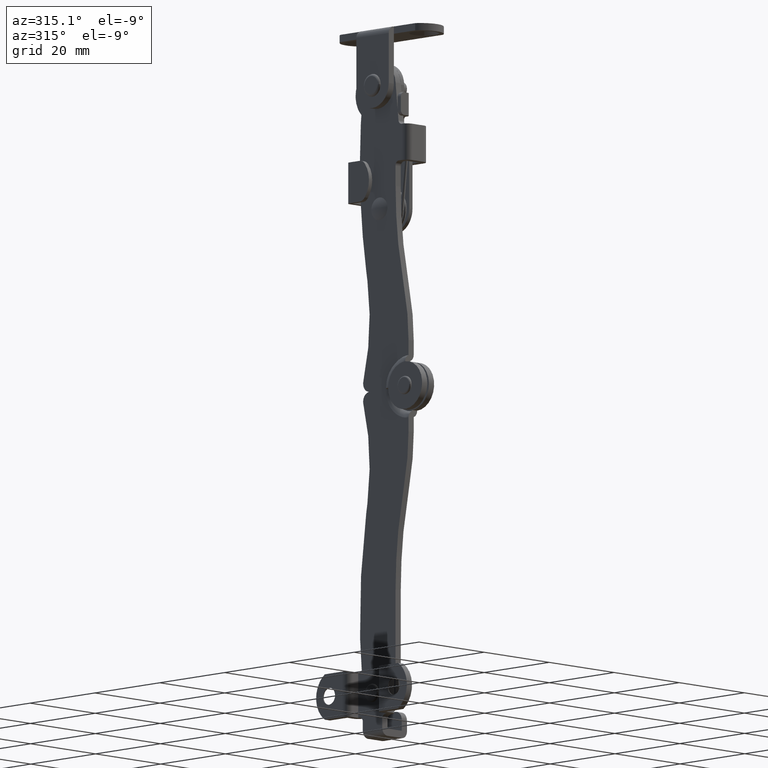
[diagram: clean part render]
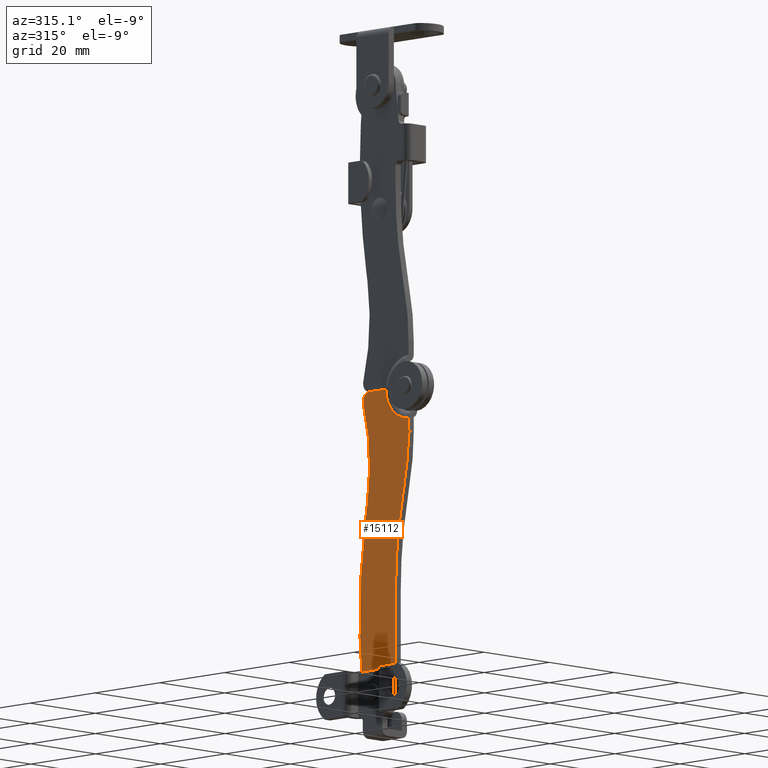
[diagram: same view with one face highlighted and labeled with its STEP entity id]
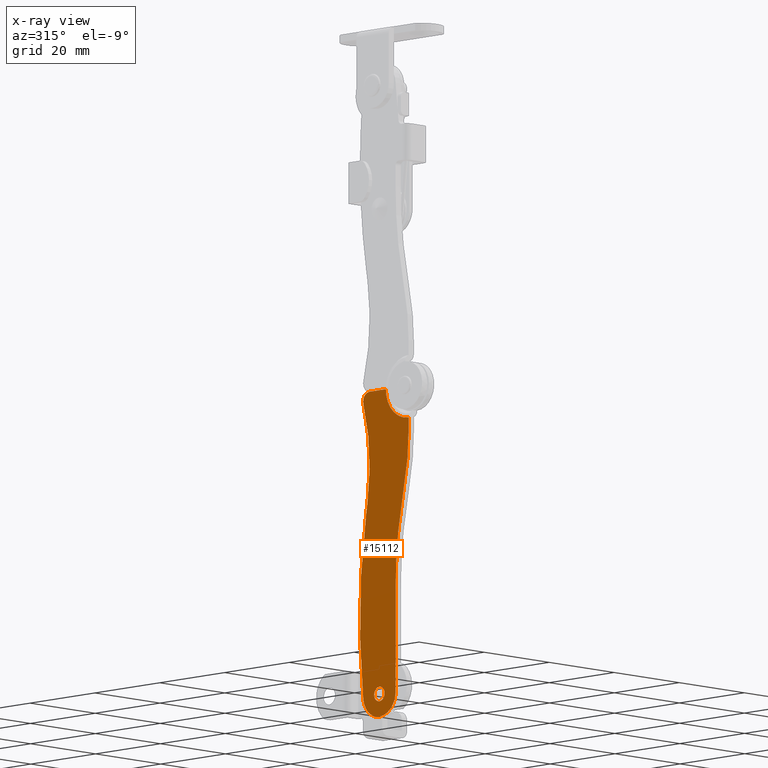
[diagram: x-ray of the same camera — body ghosted, the highlighted face saturated]
A machine part, auxiliary view. The second image highlights one B-rep face of the part: STEP entity #15112.
The next image is the same camera in x-ray: the body ghosted, the highlighted face saturated — about 0% of this face is hidden behind the body in this view.
In plain terms, the highlighted face is a freeform B-spline surface patch.
Its self-contained STEP definition (entity closure, byte-faithful):
#14506=CARTESIAN_POINT('',(-1.600000000000040,-7.898649647560606,-68.160629710091285));
#14507=VERTEX_POINT('',#14506);
#14513=CARTESIAN_POINT('',(-1.600000000000040,-9.000015391708480,-68.600032182344108));
#14514=VERTEX_POINT('',#14513);
#14515=CARTESIAN_POINT('',(-1.600000000000040,-9.000015391708480,-68.600032182344108));
#14516=CARTESIAN_POINT('',(-1.600000000000042,-8.822854063049315,-68.600133707547826));
#14517=CARTESIAN_POINT('',(-1.600000000000036,-8.417990928741068,-68.532075398564885));
#14518=CARTESIAN_POINT('',(-1.600000000000043,-8.063677255445199,-68.317702140920701));
#14519=CARTESIAN_POINT('',(-1.600000000000040,-7.898649647560606,-68.160629710091285));
#14520=B_SPLINE_CURVE_WITH_KNOTS('',3,(#14515,#14516,#14517,#14518,#14519),.UNSPECIFIED.,.F.,.U.,(4,1,4),(0.000000229336784,0.531521889103756,1.214862063979807),.UNSPECIFIED.);
#14521=EDGE_CURVE('',#14514,#14507,#14520,.T.);
#14523=CARTESIAN_POINT('',(-1.600000000000040,-10.600015391685330,-67.000040789392287));
#14524=VERTEX_POINT('',#14523);
#14525=CARTESIAN_POINT('',(-1.600000000000040,-10.600015391685330,-67.000040789392287));
#14526=CARTESIAN_POINT('',(-1.600000000000040,-10.600382991105320,-67.235734685484786));
#14527=CARTESIAN_POINT('',(-1.600000000000041,-10.499872694923880,-67.680451893718242));
#14528=CARTESIAN_POINT('',(-1.600000000000041,-10.118423913202600,-68.195010734420407));
#14529=CARTESIAN_POINT('',(-1.600000000000040,-9.602007401112095,-68.521796163772976));
#14530=CARTESIAN_POINT('',(-1.600000000000038,-9.209486720408329,-68.600247263814069));
#14531=CARTESIAN_POINT('',(-1.600000000000040,-9.000015391708480,-68.600032182344108));
#14532=B_SPLINE_CURVE_WITH_KNOTS('',3,(#14525,#14526,#14527,#14528,#14529,#14530,#14531),.UNSPECIFIED.,.F.,.U.,(4,1,1,1,4),(0.000000512667430,0.706942690576745,1.335292474191123,1.885141136479035,2.513521361735005),.UNSPECIFIED.);
#14533=EDGE_CURVE('',#14524,#14514,#14532,.T.);
#14535=CARTESIAN_POINT('',(-1.600000000000040,-10.101381135856361,-65.839434654596914));
#14536=VERTEX_POINT('',#14535);
#14537=CARTESIAN_POINT('',(-1.600000000000040,-10.101381135856361,-65.839434654596914));
#14538=CARTESIAN_POINT('',(-1.600000000000040,-10.278288175777510,-66.006813116419124));
#14539=CARTESIAN_POINT('',(-1.600000000000041,-10.522353535077769,-66.377854834962889));
#14540=CARTESIAN_POINT('',(-1.600000000000038,-10.600132689888850,-66.810663214090440));
#14541=CARTESIAN_POINT('',(-1.600000000000040,-10.600015391685330,-67.000040789392287));
#14542=B_SPLINE_CURVE_WITH_KNOTS('',3,(#14537,#14538,#14539,#14540,#14541),.UNSPECIFIED.,.F.,.U.,(4,1,4),(0.000000161662793,0.730502305909302,1.298671890535358),.UNSPECIFIED.);
#14543=EDGE_CURVE('',#14536,#14524,#14542,.T.);
#14582=CARTESIAN_POINT('',(-1.600000000000040,-9.000015391708480,-65.400032182344091));
#14583=VERTEX_POINT('',#14582);
#14584=CARTESIAN_POINT('',(-1.600000000000040,-9.000015391708480,-65.400032182344091));
#14585=CARTESIAN_POINT('',(-1.600000000000040,-9.177178716397268,-65.399931836886381));
#14586=CARTESIAN_POINT('',(-1.600000000000040,-9.582036156964334,-65.467980346709084));
#14587=CARTESIAN_POINT('',(-1.600000000000040,-9.936352986028737,-65.682375855657753));
#14588=CARTESIAN_POINT('',(-1.600000000000040,-10.101381135856361,-65.839434654596914));
#14589=B_SPLINE_CURVE_WITH_KNOTS('',3,(#14584,#14585,#14586,#14587,#14588),.UNSPECIFIED.,.F.,.U.,(4,1,4),(0.000000229336847,0.531521889103740,1.214862063979809),.UNSPECIFIED.);
#14590=EDGE_CURVE('',#14583,#14536,#14589,.T.);
#14592=CARTESIAN_POINT('',(-1.600000000000040,-7.400015391731631,-67.000023575295884));
#14593=VERTEX_POINT('',#14592);
#14594=CARTESIAN_POINT('',(-1.600000000000040,-7.400015391731631,-67.000023575295884));
#14595=CARTESIAN_POINT('',(-1.600000000000040,-7.399974320289728,-66.842957962304581));
#14596=CARTESIAN_POINT('',(-1.600000000000038,-7.450457050193039,-66.502589975329045));
#14597=CARTESIAN_POINT('',(-1.600000000000044,-7.653508776153691,-66.099197033571357));
#14598=CARTESIAN_POINT('',(-1.600000000000033,-7.971560504007706,-65.748313140899768));
#14599=CARTESIAN_POINT('',(-1.600000000000054,-8.397992024075187,-65.478247582706601));
#14600=CARTESIAN_POINT('',(-1.600000000000032,-8.790549518731153,-65.399818241694987));
#14601=CARTESIAN_POINT('',(-1.600000000000040,-9.000015391708480,-65.400032182344091));
#14602=B_SPLINE_CURVE_WITH_KNOTS('',3,(#14594,#14595,#14596,#14597,#14598,#14599,#14600,#14601),.UNSPECIFIED.,.F.,.U.,(4,1,1,1,1,4),(0.000000512668193,0.471258806611212,1.021155184618115,1.335292474191945,1.885141136479472,2.513521361734917),.UNSPECIFIED.);
#14603=EDGE_CURVE('',#14593,#14583,#14602,.T.);
#14605=CARTESIAN_POINT('',(-1.600000000000040,-7.898649647560606,-68.160629710091285));
#14606=CARTESIAN_POINT('',(-1.600000000000042,-7.761169044561385,-68.030385757246961));
#14607=CARTESIAN_POINT('',(-1.600000000000037,-7.500917183581879,-67.675943471065068));
#14608=CARTESIAN_POINT('',(-1.600000000000042,-7.399577426510943,-67.243599800838808));
#14609=CARTESIAN_POINT('',(-1.600000000000040,-7.400015391731631,-67.000023575295884));
#14610=B_SPLINE_CURVE_WITH_KNOTS('',3,(#14605,#14606,#14607,#14608,#14609),.UNSPECIFIED.,.F.,.U.,(4,1,4),(0.000000161661942,0.568169745721726,1.298671890535389),.UNSPECIFIED.);
#14611=EDGE_CURVE('',#14507,#14593,#14610,.T.);
#14652=CARTESIAN_POINT('',(-1.600000000000040,-18.000002318121751,-10.090806635435460));
#14653=VERTEX_POINT('',#14652);
#14661=CARTESIAN_POINT('',(-1.600000000000040,-16.666680639707049,-21.560564859123598));
#14662=VERTEX_POINT('',#14661);
#14663=CARTESIAN_POINT('',(-1.600000000000040,-16.666680639707049,-21.560564859123598));
#14664=CARTESIAN_POINT('',(-1.600000000000039,-17.552133862020110,-17.805902403166520));
#14665=CARTESIAN_POINT('',(-1.600000000000041,-18.000454937029641,-13.948454851815240));
#14666=CARTESIAN_POINT('',(-1.600000000000040,-18.000002318121751,-10.090806635435460));
#14667=B_SPLINE_CURVE_WITH_KNOTS('',3,(#14663,#14664,#14665,#14666),.UNSPECIFIED.,.F.,.U.,(4,4),(3.791424E-009,11.572835661507220),.UNSPECIFIED.);
#14668=EDGE_CURVE('',#14662,#14653,#14667,.T.);
#14711=CARTESIAN_POINT('',(-1.600000000000040,-14.000037282844760,-44.500000243946552));
#14712=VERTEX_POINT('',#14711);
#14713=CARTESIAN_POINT('',(-1.600000000000040,-16.666680639707049,-21.560564859123598));
#14714=CARTESIAN_POINT('',(-1.600000000000044,-14.895912679180480,-29.069883322822889));
#14715=CARTESIAN_POINT('',(-1.600000000000043,-13.999001490608761,-36.784716813795683));
#14716=CARTESIAN_POINT('',(-1.600000000000040,-14.000037282844760,-44.500000243946552));
#14717=B_SPLINE_CURVE_WITH_KNOTS('',3,(#14713,#14714,#14715,#14716),.UNSPECIFIED.,.F.,.U.,(4,4),(2.266344E-009,23.145552420831269),.UNSPECIFIED.);
#14718=EDGE_CURVE('',#14662,#14712,#14717,.T.);
#14734=CARTESIAN_POINT('',(-1.600000000000040,-14.000042451703299,-67.000016511367505));
#14735=VERTEX_POINT('',#14734);
#14736=CARTESIAN_POINT('',(-1.600000000000040,-14.000042451703299,-67.000016511367505));
#14737=CARTESIAN_POINT('',(-1.600000000000040,-14.000037282844760,-44.500000243946552));
#14738=QUASI_UNIFORM_CURVE('',1,(#14736,#14737),.UNSPECIFIED.,.F.,.U.);
#14739=EDGE_CURVE('',#14735,#14712,#14738,.T.);
#14771=CARTESIAN_POINT('',(-1.600000000000040,-11.530428974307000,-71.312461855439409));
#14772=VERTEX_POINT('',#14771);
#14773=CARTESIAN_POINT('',(-1.600000000000040,-11.530428974307000,-71.312461855439409));
#14774=CARTESIAN_POINT('',(-1.600000000000042,-12.044683630160110,-71.011190415317159));
#14775=CARTESIAN_POINT('',(-1.600000000000039,-12.754177323768680,-70.401217637701237));
#14776=CARTESIAN_POINT('',(-1.600000000000042,-13.460513953190430,-69.334642246077237));
#14777=CARTESIAN_POINT('',(-1.600000000000038,-13.886948744457071,-68.273061629878555));
#14778=CARTESIAN_POINT('',(-1.600000000000042,-14.000214319138779,-67.460526202288563));
#14779=CARTESIAN_POINT('',(-1.600000000000040,-14.000042451703299,-67.000016511367505));
#14780=B_SPLINE_CURVE_WITH_KNOTS('',3,(#14773,#14774,#14775,#14776,#14777,#14778,#14779),.UNSPECIFIED.,.F.,.U.,(4,1,1,1,4),(0.000000205138576,1.787830585607317,2.762955643235162,3.819402589471806,5.200889753935459),.UNSPECIFIED.);
#14781=EDGE_CURVE('',#14772,#14735,#14780,.T.);
#14818=CARTESIAN_POINT('',(-1.600000000000040,-6.469608432589420,-71.312455179023004));
#14819=VERTEX_POINT('',#14818);
#14820=CARTESIAN_POINT('',(-1.600000000000040,-6.469608432589420,-71.312455179023004));
#14821=CARTESIAN_POINT('',(-1.600000000000042,-7.089064712696946,-71.677061594507691));
#14822=CARTESIAN_POINT('',(-1.600000000000038,-8.111115125688375,-72.008554121473338));
#14823=CARTESIAN_POINT('',(-1.600000000000042,-9.888920983325575,-72.008327635027015));
#14824=CARTESIAN_POINT('',(-1.600000000000037,-10.910989525089359,-71.677207125600532));
#14825=CARTESIAN_POINT('',(-1.600000000000040,-11.530428974307000,-71.312461855439409));
#14826=B_SPLINE_CURVE_WITH_KNOTS('',3,(#14820,#14821,#14822,#14823,#14824,#14825),.UNSPECIFIED.,.F.,.U.,(4,1,1,4),(0.000000200921877,2.155777470303482,3.150645482496825,5.306422078688058),.UNSPECIFIED.);
#14827=EDGE_CURVE('',#14819,#14772,#14826,.T.);
#14864=CARTESIAN_POINT('',(-1.600000000000040,-4.035986853081115,-67.598702064875596));
#14865=VERTEX_POINT('',#14864);
#14866=CARTESIAN_POINT('',(-1.600000000000040,-4.035986853081115,-67.598702064875596));
#14867=CARTESIAN_POINT('',(-1.600000000000042,-4.110049128336812,-68.217396026956990));
#14868=CARTESIAN_POINT('',(-1.600000000000037,-4.420320537222939,-69.193193818753471));
#14869=CARTESIAN_POINT('',(-1.600000000000044,-5.303323242109300,-70.459524825928270));
#14870=CARTESIAN_POINT('',(-1.600000000000043,-6.014764768069914,-71.045893744338827));
#14871=CARTESIAN_POINT('',(-1.600000000000040,-6.469608432589420,-71.312455179023004));
#14872=B_SPLINE_CURVE_WITH_KNOTS('',3,(#14866,#14867,#14868,#14869,#14870,#14871),.UNSPECIFIED.,.F.,.U.,(4,1,1,4),(0.000000118585564,1.869119729954844,3.019283078164560,4.600846739152575),.UNSPECIFIED.);
#14873=EDGE_CURVE('',#14865,#14819,#14872,.T.);
#14909=CARTESIAN_POINT('',(-1.600000000000040,-4.929102881336751,-26.865036157473750));
#14910=VERTEX_POINT('',#14909);
#14911=CARTESIAN_POINT('',(-1.600000000000040,-4.929102881336751,-26.865036157473750));
#14912=CARTESIAN_POINT('',(-1.600000000000041,-3.782479799608110,-33.797214708081583));
#14913=CARTESIAN_POINT('',(-1.600000000000038,-2.545961841139067,-47.404525600742957));
#14914=CARTESIAN_POINT('',(-1.600000000000040,-3.245355065017013,-61.045689575762992));
#14915=CARTESIAN_POINT('',(-1.600000000000040,-4.035986853081115,-67.598702064875596));
#14916=B_SPLINE_CURVE_WITH_KNOTS('',3,(#14911,#14912,#14913,#14914,#14915),.UNSPECIFIED.,.F.,.U.,(4,1,4),(3.126260E-009,21.079063408443560,40.880633748940603),.UNSPECIFIED.);
#14917=EDGE_CURVE('',#14910,#14865,#14916,.T.);
#15032=CARTESIAN_POINT('',(-1.600000000000000,-2.251438371731954,-75.596591491985507));
#15033=CARTESIAN_POINT('',(-1.600000000000000,-18.749220054583340,-75.596591491985507));
#15034=CARTESIAN_POINT('',(-1.600000000000000,-2.251438371731954,3.596411120718769));
#15035=CARTESIAN_POINT('',(-1.600000000000000,-18.749220054583340,3.596411120718769));
#15036=B_SPLINE_SURFACE_WITH_KNOTS('',1,1,((#15032,#15034),(#15033,#15035)),.UNSPECIFIED.,.F.,.F.,.U.,(2,2),(2,2),(0.0,16.497781682851389),(0.0,79.193002612704277),.UNSPECIFIED.);
#15037=CARTESIAN_POINT('',(-1.600000000000040,-6.000000271738090,5.525144E-011));
#15038=VERTEX_POINT('',#15037);
#15039=CARTESIAN_POINT('',(-1.600000000000040,-4.076922621813956,-2.549340318527680));
#15040=VERTEX_POINT('',#15039);
#15041=CARTESIAN_POINT('',(-1.600000000000040,-6.000000271738090,5.525144E-011));
#15042=CARTESIAN_POINT('',(-1.600000000000040,-5.691693748817660,0.000586328169091));
#15043=CARTESIAN_POINT('',(-1.600000000000039,-5.229979394355085,-0.109074275365518));
#15044=CARTESIAN_POINT('',(-1.600000000000042,-4.694043971849216,-0.458660019610268));
#15045=CARTESIAN_POINT('',(-1.600000000000039,-4.311090480494967,-0.871745775540605));
#15046=CARTESIAN_POINT('',(-1.600000000000041,-3.974790460631908,-1.577910885937425));
#15047=CARTESIAN_POINT('',(-1.600000000000039,-3.975319216013432,-2.197511001204540));
#15048=CARTESIAN_POINT('',(-1.600000000000040,-4.076922621813956,-2.549340318527680));
#15049=B_SPLINE_CURVE_WITH_KNOTS('',3,(#15041,#15042,#15043,#15044,#15045,#15046,#15047,#15048),.UNSPECIFIED.,.F.,.U.,(4,1,1,1,1,4),(0.000000966408789,0.924556461322362,1.386868191611843,1.906789097245460,2.600294991591669,3.698213324510074),.UNSPECIFIED.);
#15050=EDGE_CURVE('',#15038,#15040,#15049,.T.);
#15051=ORIENTED_EDGE('',*,*,#15050,.T.);
#15052=CARTESIAN_POINT('',(-1.600000000000040,-5.330153308003991,-24.439594119586349));
#15053=VERTEX_POINT('',#15052);
#15054=CARTESIAN_POINT('',(-1.600000000000040,-5.330153308003991,-24.439594119586349));
#15055=CARTESIAN_POINT('',(-1.600000000000039,-5.687029890623886,-22.281367873347520));
#15056=CARTESIAN_POINT('',(-1.600000000000040,-6.196534771050869,-17.114183943918970));
#15057=CARTESIAN_POINT('',(-1.600000000000046,-5.773617437367152,-9.728012983300236));
#15058=CARTESIAN_POINT('',(-1.600000000000034,-4.677799242778850,-4.652734289293552));
#15059=CARTESIAN_POINT('',(-1.600000000000040,-4.076922621813956,-2.549340318527680));
#15060=B_SPLINE_CURVE_WITH_KNOTS('',3,(#15054,#15055,#15056,#15057,#15058,#15059),.UNSPECIFIED.,.F.,.U.,(4,1,1,4),(0.000000013429784,6.562646736432173,15.543093248042920,22.105739971045239),.UNSPECIFIED.);
#15061=EDGE_CURVE('',#15053,#15040,#15060,.T.);
#15062=ORIENTED_EDGE('',*,*,#15061,.F.);
#15063=CARTESIAN_POINT('',(-1.600000000000040,-5.330153308003991,-24.439594119586349));
#15064=CARTESIAN_POINT('',(-1.600000000000040,-4.929102881336751,-26.865036157473750));
#15065=QUASI_UNIFORM_CURVE('',1,(#15063,#15064),.UNSPECIFIED.,.F.,.U.);
#15066=EDGE_CURVE('',#15053,#14910,#15065,.T.);
#15067=ORIENTED_EDGE('',*,*,#15066,.T.);
#15068=ORIENTED_EDGE('',*,*,#14917,.T.);
#15069=ORIENTED_EDGE('',*,*,#14873,.T.);
#15070=ORIENTED_EDGE('',*,*,#14827,.T.);
#15071=ORIENTED_EDGE('',*,*,#14781,.T.);
#15072=ORIENTED_EDGE('',*,*,#14739,.T.);
#15073=ORIENTED_EDGE('',*,*,#14718,.F.);
#15074=ORIENTED_EDGE('',*,*,#14668,.T.);
#15075=CARTESIAN_POINT('',(-1.599999999999615,-18.000000416127250,-6.995228754251420));
#15076=VERTEX_POINT('',#15075);
#15077=CARTESIAN_POINT('',(-1.600000000000040,-18.000002318121751,-10.090806635435460));
#15078=CARTESIAN_POINT('',(-1.599999999999615,-18.000000416127250,-6.995228754251420));
#15079=QUASI_UNIFORM_CURVE('',1,(#15077,#15078),.UNSPECIFIED.,.F.,.U.);
#15080=EDGE_CURVE('',#14653,#15076,#15079,.T.);
#15081=ORIENTED_EDGE('',*,*,#15080,.T.);
#15082=CARTESIAN_POINT('',(-1.600000000000000,-11.004772451749920,0.000000202809035));
#15083=VERTEX_POINT('',#15082);
#15084=CARTESIAN_POINT('',(-1.600000000000000,-11.004772451749920,0.000000202809035));
#15085=CARTESIAN_POINT('',(-1.600000000000020,-11.004694206076040,-0.515054969221248));
#15086=CARTESIAN_POINT('',(-1.600000000000048,-11.119034676553310,-1.545162366536750));
#15087=CARTESIAN_POINT('',(-1.600000000000058,-11.605995908656540,-2.960822264210952));
#15088=CARTESIAN_POINT('',(-1.600000000000038,-12.286053999152561,-4.095259580000663));
#15089=CARTESIAN_POINT('',(-1.599999999999992,-13.110666552763430,-5.051195483363882));
#15090=CARTESIAN_POINT('',(-1.599999999999947,-14.088590176857000,-5.853792443723206));
#15091=CARTESIAN_POINT('',(-1.599999999999806,-15.711452986627320,-6.721505970547622));
#15092=CARTESIAN_POINT('',(-1.599999999999707,-17.084134738411770,-6.996256526168818));
#15093=CARTESIAN_POINT('',(-1.599999999999615,-18.000000416127250,-6.995228754251420));
#15094=B_SPLINE_CURVE_WITH_KNOTS('',3,(#15084,#15085,#15086,#15087,#15088,#15089,#15090,#15091,#15092,#15093),.UNSPECIFIED.,.F.,.U.,(4,1,1,1,1,1,1,4),(0.000000103779566,1.545191646219777,3.090488025526439,4.464031827243477,5.494177607632508,6.867688250547478,8.241266322029018,10.988355036068249),.UNSPECIFIED.);
#15095=EDGE_CURVE('',#15083,#15076,#15094,.T.);
#15096=ORIENTED_EDGE('',*,*,#15095,.F.);
#15097=CARTESIAN_POINT('',(-1.600000000000000,-11.004772451749920,0.000000202809035));
#15098=CARTESIAN_POINT('',(-1.600000000000040,-6.000000271738090,5.525144E-011));
#15099=QUASI_UNIFORM_CURVE('',1,(#15097,#15098),.UNSPECIFIED.,.F.,.U.);
#15100=EDGE_CURVE('',#15083,#15038,#15099,.T.);
#15101=ORIENTED_EDGE('',*,*,#15100,.T.);
#15102=EDGE_LOOP('',(#15051,#15062,#15067,#15068,#15069,#15070,#15071,#15072,#15073,#15074,#15081,#15096,#15101));
#15103=FACE_OUTER_BOUND('',#15102,.T.);
#15104=ORIENTED_EDGE('',*,*,#14533,.T.);
#15105=ORIENTED_EDGE('',*,*,#14521,.T.);
#15106=ORIENTED_EDGE('',*,*,#14611,.T.);
#15107=ORIENTED_EDGE('',*,*,#14603,.T.);
#15108=ORIENTED_EDGE('',*,*,#14590,.T.);
#15109=ORIENTED_EDGE('',*,*,#14543,.T.);
#15110=EDGE_LOOP('',(#15104,#15105,#15106,#15107,#15108,#15109));
#15111=FACE_BOUND('',#15110,.T.);
#15112=ADVANCED_FACE('',(#15103,#15111),#15036,.T.);